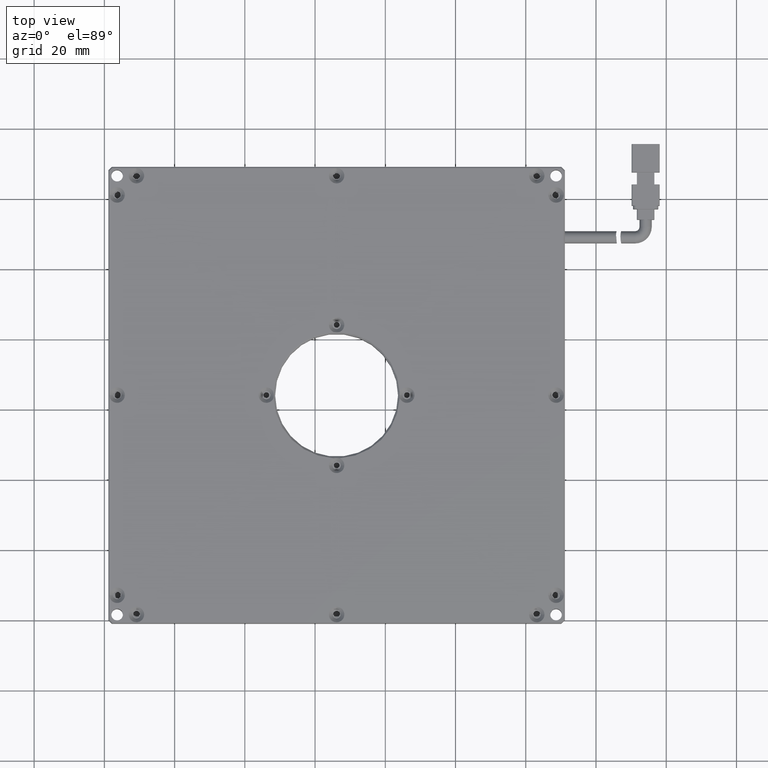
[diagram: clean part render]
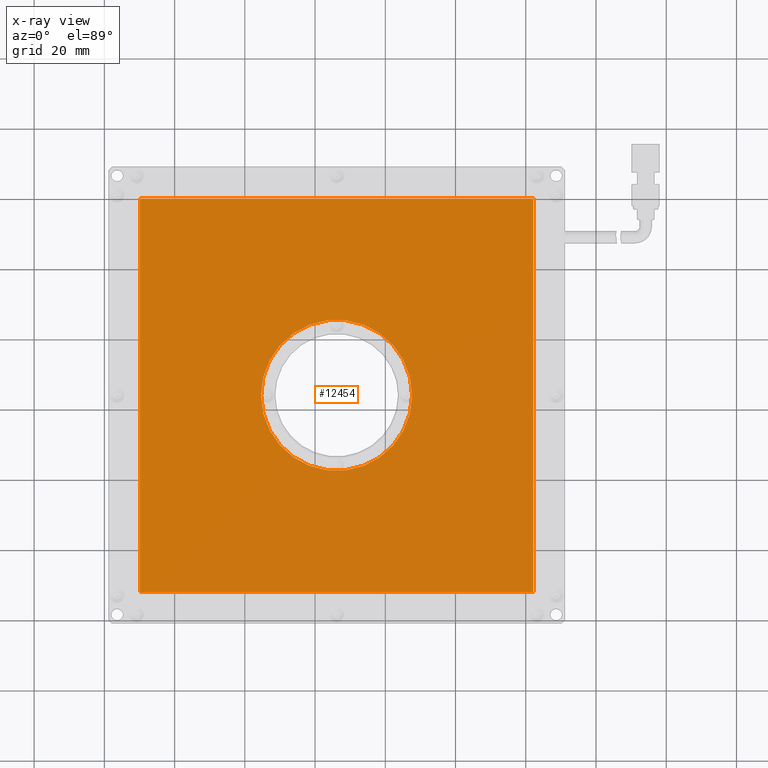
[diagram: x-ray — body ghosted, one internal face saturated and labeled with its STEP entity id]
A machine part, top view, then the same camera in x-ray: the body is ghosted and one INTERNAL B-rep face — a face not visible from any outside direction — is saturated and labeled: STEP entity #12454.
In plain terms, the highlighted planar face has unit normal (0, 0, -1).
Its self-contained STEP definition (entity closure, byte-faithful):
#415 = CARTESIAN_POINT ( 'NONE',  ( 4.629074074074115000, 24.05944444444444500, 2.000000000000000000 ) ) ;
#516 = CARTESIAN_POINT ( 'NONE',  ( -29.87092592592589200, 80.05944444444445200, 2.000000000000000000 ) ) ;
#659 = ORIENTED_EDGE ( 'NONE', *, *, #17891, .F. ) ;
#1007 = VERTEX_POINT ( 'NONE', #16547 ) ;
#1045 = VECTOR ( 'NONE', #3976, 1000.000000000000000 ) ;
#1145 = DIRECTION ( 'NONE',  ( 0.0000000000000000000, 0.0000000000000000000, 1.000000000000000000 ) ) ;
#1585 = AXIS2_PLACEMENT_3D ( 'NONE', #516, #5217, #3932 ) ;
#1906 = VERTEX_POINT ( 'NONE', #6797 ) ;
#2338 = CARTESIAN_POINT ( 'NONE',  ( -29.87092592592589200, -31.94055555555555500, 2.000000000000000000 ) ) ;
#2611 = EDGE_CURVE ( 'NONE', #17221, #1007, #2737, .T. ) ;
#2662 = DIRECTION ( 'NONE',  ( -1.000000000000000000, 0.0000000000000000000, 0.0000000000000000000 ) ) ;
#2737 = CIRCLE ( 'NONE', #11868, 21.50000000000000000 ) ;
#3108 = LINE ( 'NONE', #7135, #16617 ) ;
#3280 = CARTESIAN_POINT ( 'NONE',  ( 82.12907407407411100, 80.05944444444445200, 2.000000000000000000 ) ) ;
#3431 = FACE_OUTER_BOUND ( 'NONE', #9289, .T. ) ;
#3718 = LINE ( 'NONE', #16465, #1045 ) ;
#3932 = DIRECTION ( 'NONE',  ( -1.000000000000000000, 0.0000000000000000000, -0.0000000000000000000 ) ) ;
#3976 = DIRECTION ( 'NONE',  ( 0.0000000000000000000, 1.000000000000000000, 0.0000000000000000000 ) ) ;
#4932 = VERTEX_POINT ( 'NONE', #16329 ) ;
#5217 = DIRECTION ( 'NONE',  ( 0.0000000000000000000, 0.0000000000000000000, -1.000000000000000000 ) ) ;
#5628 = CIRCLE ( 'NONE', #8142, 21.50000000000000000 ) ;
#5708 = CARTESIAN_POINT ( 'NONE',  ( 26.12907407407411900, 24.05944444444444500, 2.000000000000000000 ) ) ;
#6797 = CARTESIAN_POINT ( 'NONE',  ( 82.12907407407411100, -31.94055555555555500, 2.000000000000000000 ) ) ;
#7135 = CARTESIAN_POINT ( 'NONE',  ( -29.87092592592589200, 80.05944444444445200, 2.000000000000000000 ) ) ;
#7330 = VERTEX_POINT ( 'NONE', #2338 ) ;
#8142 = AXIS2_PLACEMENT_3D ( 'NONE', #5708, #12144, #13808 ) ;
#8327 = ORIENTED_EDGE ( 'NONE', *, *, #13781, .F. ) ;
#9289 = EDGE_LOOP ( 'NONE', ( #659, #8327, #12717, #13116 ) ) ;
#9477 = VECTOR ( 'NONE', #17945, 1000.000000000000000 ) ;
#10008 = EDGE_CURVE ( 'NONE', #7330, #4932, #3718, .T. ) ;
#10164 = ORIENTED_EDGE ( 'NONE', *, *, #2611, .F. ) ;
#10258 = CARTESIAN_POINT ( 'NONE',  ( -29.87092592592589200, -31.94055555555555500, 2.000000000000000000 ) ) ;
#11023 = EDGE_CURVE ( 'NONE', #4932, #13766, #3108, .T. ) ;
#11868 = AXIS2_PLACEMENT_3D ( 'NONE', #19803, #1145, #2662 ) ;
#11943 = LINE ( 'NONE', #10258, #9477 ) ;
#12144 = DIRECTION ( 'NONE',  ( 0.0000000000000000000, 0.0000000000000000000, 1.000000000000000000 ) ) ;
#12454 = ADVANCED_FACE ( 'NONE', ( #3431, #13525 ), #16351, .F. ) ;
#12614 = EDGE_CURVE ( 'NONE', #1007, #17221, #5628, .T. ) ;
#12717 = ORIENTED_EDGE ( 'NONE', *, *, #11023, .F. ) ;
#13116 = ORIENTED_EDGE ( 'NONE', *, *, #10008, .F. ) ;
#13525 = FACE_BOUND ( 'NONE', #19804, .T. ) ;
#13766 = VERTEX_POINT ( 'NONE', #18929 ) ;
#13781 = EDGE_CURVE ( 'NONE', #13766, #1906, #17515, .T. ) ;
#13808 = DIRECTION ( 'NONE',  ( -1.000000000000000000, 0.0000000000000000000, 0.0000000000000000000 ) ) ;
#14077 = DIRECTION ( 'NONE',  ( -0.0000000000000000000, -1.000000000000000000, -0.0000000000000000000 ) ) ;
#14962 = DIRECTION ( 'NONE',  ( 1.000000000000000000, -0.0000000000000000000, 0.0000000000000000000 ) ) ;
#15366 = ORIENTED_EDGE ( 'NONE', *, *, #12614, .F. ) ;
#16329 = CARTESIAN_POINT ( 'NONE',  ( -29.87092592592589200, 80.05944444444445200, 2.000000000000000000 ) ) ;
#16351 = PLANE ( 'NONE',  #1585 ) ;
#16465 = CARTESIAN_POINT ( 'NONE',  ( -29.87092592592589200, 80.05944444444445200, 2.000000000000000000 ) ) ;
#16547 = CARTESIAN_POINT ( 'NONE',  ( 47.62907407407411900, 24.05944444444444800, 2.000000000000000000 ) ) ;
#16617 = VECTOR ( 'NONE', #14962, 1000.000000000000000 ) ;
#17221 = VERTEX_POINT ( 'NONE', #415 ) ;
#17272 = VECTOR ( 'NONE', #14077, 1000.000000000000000 ) ;
#17515 = LINE ( 'NONE', #3280, #17272 ) ;
#17891 = EDGE_CURVE ( 'NONE', #1906, #7330, #11943, .T. ) ;
#17945 = DIRECTION ( 'NONE',  ( -1.000000000000000000, 0.0000000000000000000, -0.0000000000000000000 ) ) ;
#18929 = CARTESIAN_POINT ( 'NONE',  ( 82.12907407407411100, 80.05944444444445200, 2.000000000000000000 ) ) ;
#19803 = CARTESIAN_POINT ( 'NONE',  ( 26.12907407407411900, 24.05944444444444500, 2.000000000000000000 ) ) ;
#19804 = EDGE_LOOP ( 'NONE', ( #10164, #15366 ) ) ;